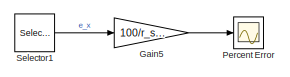
[diagram: root canvas - part 1/3, top right region]
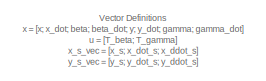
[diagram: root canvas - part 2/3, middle left region]
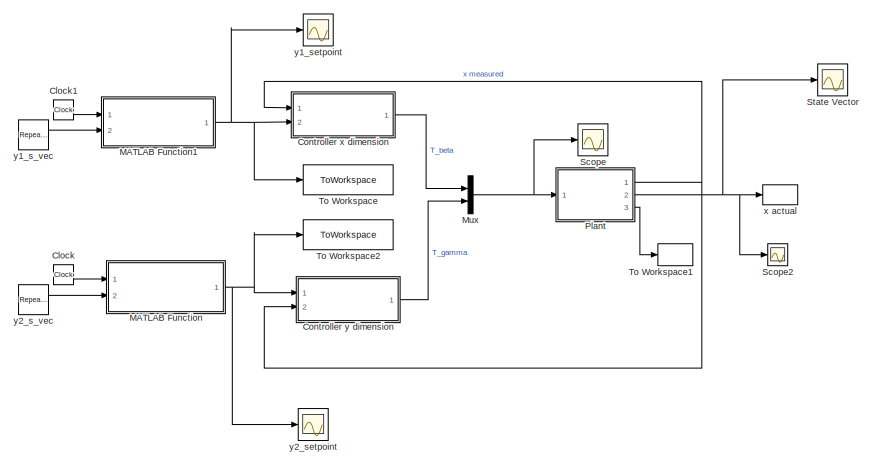
[diagram: root canvas - part 3/3, bottom left region]
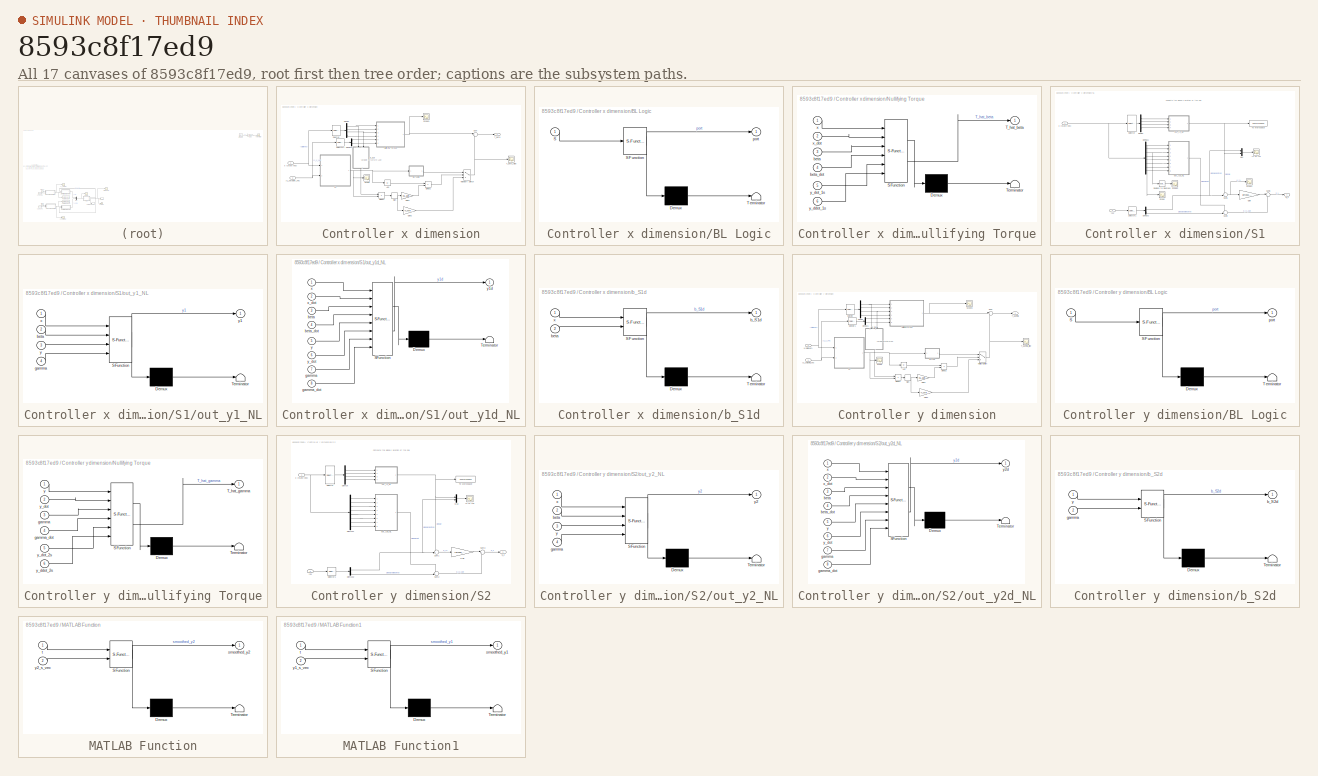
[diagram: thumbnail index - all 17 canvases of the model, root first then tree order]
MODEL slx_8593c8f17ed9
KIND model
CONFIG AbsTol = auto
CONFIG EnableMultiTasking = off
CONFIG FixedStep = auto
CONFIG MaxStep = auto
CONFIG MinStep = auto
CONFIG RelTol = 1e-9
CONFIG SampleTimeConstraint = Unconstrained
CONFIG SolverName = VariableStepAuto
CONFIG StartTime = 0.0
CONFIG StopTime = t_sim
BLOCK [Clock] Clock
BLOCK [Clock] Clock1
BLOCK [SubSystem] Controller x dimension
  Ports = [2, 1]
  RequestExecContextInheritance = off
BLOCK [Abs] Controller x dimension/Abs
  SaturateOnIntegerOverflow = off
BLOCK [SubSystem] Controller x dimension/BL Logic
  ErrorFcn = Stateflow.Translate.translate
  PermitHierarchicalResolution = ExplicitOnly
  Ports = [1, 1]
  RequestExecContextInheritance = off
  SFBlockType = MATLAB Function
  TreatAsAtomicUnit = on
BLOCK [Demux] Controller x dimension/BL Logic/ Demux 
  Outputs = 1
  Ports = [1, 1]
BLOCK [S-Function] Controller x dimension/BL Logic/ SFunction 
  EnableBusSupport = on
  FunctionName = sf_sfun
  Parameters = S_BL_value
  PortCounts = [1 2]
  Ports = [1, 2]
  SFcnIsStateOwnerBlock = off
  SFunctionDeploymentMode = off
  Tag = Stateflow S-Function 12
BLOCK [Terminator] Controller x dimension/BL Logic/ Terminator 
BLOCK [Inport] Controller x dimension/BL Logic/S
BLOCK [Outport] Controller x dimension/BL Logic/port
BLOCK [Demux] Controller x dimension/Demux
  Ports = [1, 4]
BLOCK [Demux] Controller x dimension/Demux1
  Outputs = 2
  Ports = [1, 2]
BLOCK [Product] Controller x dimension/Divide1
  Inputs = **
  Ports = [2, 1]
BLOCK [Product] Controller x dimension/Divide2
  Inputs = **
  Ports = [2, 1]
BLOCK [Gain] Controller x dimension/Gain1
  Gain = -BL_gain
BLOCK [Gain] Controller x dimension/Gain2
  Gain = -K_switch
BLOCK [MultiPortSwitch] Controller x dimension/Multiport Switch
  InputSameDT = off
  Inputs = 2
  Ports = [3, 1]
  SaturateOnIntegerOverflow = off
BLOCK [SubSystem] Controller x dimension/Nullifying Torque
  ErrorFcn = Stateflow.Translate.translate
  PermitHierarchicalResolution = ExplicitOnly
  Ports = [6, 1]
  RequestExecContextInheritance = off
  SFBlockType = MATLAB Function
  TreatAsAtomicUnit = on
BLOCK [Demux] Controller x dimension/Nullifying Torque/ Demux 
  Outputs = 1
  Ports = [1, 1]
BLOCK [S-Function] Controller x dimension/Nullifying Torque/ SFunction 
  EnableBusSupport = on
  FunctionName = sf_sfun
  PortCounts = [6 2]
  Ports = [6, 2]
  SFcnIsStateOwnerBlock = off
  SFunctionDeploymentMode = off
  Tag = Stateflow S-Function 9
BLOCK [Terminator] Controller x dimension/Nullifying Torque/ Terminator 
BLOCK [Outport] Controller x dimension/Nullifying Torque/T_hat_beta
BLOCK [Inport] Controller x dimension/Nullifying Torque/beta
  Port = 3
BLOCK [Inport] Controller x dimension/Nullifying Torque/beta_dot
  Port = 4
BLOCK [Inport] Controller x dimension/Nullifying Torque/x
BLOCK [Inport] Controller x dimension/Nullifying Torque/x_dot
  Port = 2
BLOCK [Inport] Controller x dimension/Nullifying Torque/y_ddot_1s
  Port = 6
BLOCK [Inport] Controller x dimension/Nullifying Torque/y_dot_1s
  Port = 5
BLOCK [SubSystem] Controller x dimension/S1
  Ports = [2, 1]
  RequestExecContextInheritance = off
BLOCK [Demux] Controller x dimension/S1/Demux
  Ports = [1, 4]
BLOCK [Demux] Controller x dimension/S1/Demux1
  Outputs = 8
  Ports = [1, 8]
BLOCK [Demux] Controller x dimension/S1/Demux2
  Outputs = 2
  Ports = [1, 2]
BLOCK [Gain] Controller x dimension/S1/Gain
  Gain = lambda_1_num
BLOCK [Mux] Controller x dimension/S1/Mux
  DisplayOption = bar
  Inputs = 2
  Ports = [2, 1]
BLOCK [Reference] Controller x dimension/S1/Radians to Degrees  REF=simulink_extras/Transformations/Radians
to Degrees
  Ports = [1, 1]
  SourceBlock = simulink_extras/Transformations/Radians\nto Degrees
  SourceProductBaseCode = SL
  SourceType = RadiansToDegrees
BLOCK [Outport] Controller x dimension/S1/S_1
BLOCK [Scope] Controller x dimension/S1/Scope
  Floating = off
  NumInputPorts = 1
  Ports = [1]
  ScopeSpecificationString = Simulink.scopes.TimeScopeBlockCfg('CurrentConfiguration', extmgr.ConfigurationSet(extmgr.Configuration('Core','General UI',true),extmgr.Configuration('Core','Source UI',true),extmgr.Configuration('Sources','WiredSimulink',true,'DataLoggingVariableName','ScopeData1'),extmgr.Configuration('Visuals','Time Domain',true,'SerializedDisplays',{struct('MinYLimReal','-0.13096','MaxYLimReal','0.1311','YLabe...<+1418ch>
BLOCK [Scope] Controller x dimension/S1/Scope1
  Floating = off
  NumInputPorts = 1
  Ports = [1]
  ScopeSpecificationString = Simulink.scopes.TimeScopeBlockCfg('CurrentConfiguration', extmgr.ConfigurationSet(extmgr.Configuration('Core','General UI',true),extmgr.Configuration('Core','Source UI',true),extmgr.Configuration('Sources','WiredSimulink',true,'DataLoggingVariableName','ScopeData4'),extmgr.Configuration('Visuals','Time Domain',true,'SerializedDisplays',{struct('MinYLimReal','-4.34062','MaxYLimReal','1.0135','YLabe...<+1435ch>
BLOCK [Scope] Controller x dimension/S1/Scope2
  Floating = off
  NumInputPorts = 1
  Ports = [1]
  ScopeSpecificationString = Simulink.scopes.TimeScopeBlockCfg('CurrentConfiguration', extmgr.ConfigurationSet(extmgr.Configuration('Core','General UI',true),extmgr.Configuration('Core','Source UI',true),extmgr.Configuration('Sources','WiredSimulink',true,'DataLoggingVariableName','ScopeData3'),extmgr.Configuration('Visuals','Time Domain',true,'SerializedDisplays',{struct('MinYLimReal','-82.40994','MaxYLimReal','169.11504','Y...<+1460ch>
BLOCK [Selector] Controller x dimension/S1/Selector
  IndexOptions = Index vector (dialog)
  Indices = [1 3 5 7]
  InputPortWidth = 8
  OutputSizes = 1
  Ports = [1, 1]
BLOCK [Selector] Controller x dimension/S1/Selector1
  IndexOptions = Index vector (dialog)
  Indices = [1 2]
  InputPortWidth = 3
  OutputSizes = 1
  Ports = [1, 1]
BLOCK [Sum] Controller x dimension/S1/Sum1
  Inputs = -+|
  Ports = [2, 1]
BLOCK [Sum] Controller x dimension/S1/Sum2
  Inputs = -+|
  Ports = [2, 1]
BLOCK [Sum] Controller x dimension/S1/Sum3
  Inputs = |++
  Ports = [2, 1]
BLOCK [ToWorkspace] Controller x dimension/S1/To Workspace
  FixptAsFi = on
  MaxDataPoints = inf
  Ports = [1]
  SampleTime = -1
  VariableName = y1
BLOCK [SubSystem] Controller x dimension/S1/out_y1_NL
  ErrorFcn = Stateflow.Translate.translate
  PermitHierarchicalResolution = ExplicitOnly
  Ports = [4, 1]
  RequestExecContextInheritance = off
  SFBlockType = MATLAB Function
  TreatAsAtomicUnit = on
BLOCK [Demux] Controller x dimension/S1/out_y1_NL/ Demux 
  Outputs = 1
  Ports = [1, 1]
BLOCK [S-Function] Controller x dimension/S1/out_y1_NL/ SFunction 
  EnableBusSupport = on
  FunctionName = sf_sfun
  PortCounts = [4 2]
  Ports = [4, 2]
  SFcnIsStateOwnerBlock = off
  SFunctionDeploymentMode = off
  Tag = Stateflow S-Function 5
BLOCK [Terminator] Controller x dimension/S1/out_y1_NL/ Terminator 
BLOCK [Inport] Controller x dimension/S1/out_y1_NL/beta
  Port = 2
BLOCK [Inport] Controller x dimension/S1/out_y1_NL/gamma
  Port = 4
BLOCK [Inport] Controller x dimension/S1/out_y1_NL/x
BLOCK [Inport] Controller x dimension/S1/out_y1_NL/y
  Port = 3
BLOCK [Outport] Controller x dimension/S1/out_y1_NL/y1
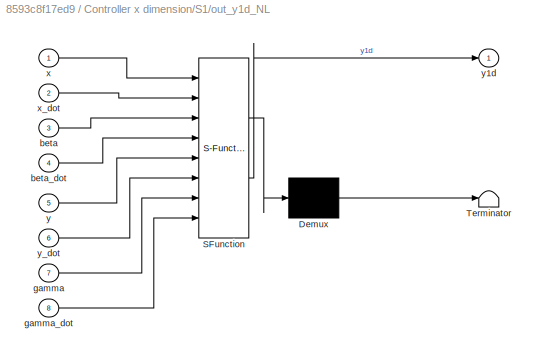
BLOCK [SubSystem] Controller x dimension/S1/out_y1d_NL
  ErrorFcn = Stateflow.Translate.translate
  PermitHierarchicalResolution = ExplicitOnly
  Ports = [8, 1]
  RequestExecContextInheritance = off
  SFBlockType = MATLAB Function
  TreatAsAtomicUnit = on
BLOCK [Demux] Controller x dimension/S1/out_y1d_NL/ Demux 
  Outputs = 1
  Ports = [1, 1]
BLOCK [S-Function] Controller x dimension/S1/out_y1d_NL/ SFunction 
  EnableBusSupport = on
  FunctionName = sf_sfun
  PortCounts = [8 2]
  Ports = [8, 2]
  SFcnIsStateOwnerBlock = off
  SFunctionDeploymentMode = off
  Tag = Stateflow S-Function 11
BLOCK [Terminator] Controller x dimension/S1/out_y1d_NL/ Terminator 
BLOCK [Inport] Controller x dimension/S1/out_y1d_NL/beta
  Port = 3
BLOCK [Inport] Controller x dimension/S1/out_y1d_NL/beta_dot
  Port = 4
BLOCK [Inport] Controller x dimension/S1/out_y1d_NL/gamma
  Port = 7
BLOCK [Inport] Controller x dimension/S1/out_y1d_NL/gamma_dot
  Port = 8
BLOCK [Inport] Controller x dimension/S1/out_y1d_NL/x
BLOCK [Inport] Controller x dimension/S1/out_y1d_NL/x_dot
  Port = 2
BLOCK [Inport] Controller x dimension/S1/out_y1d_NL/y
  Port = 5
BLOCK [Outport] Controller x dimension/S1/out_y1d_NL/y1d
BLOCK [Inport] Controller x dimension/S1/out_y1d_NL/y_dot
  Port = 6
BLOCK [Inport] Controller x dimension/S1/x (state vec)
BLOCK [Scope] Controller x dimension/S1/y1 vs y1s
  Floating = off
  NumInputPorts = 1
  Ports = [1]
  ScopeSpecificationString = Simulink.scopes.TimeScopeBlockCfg('CurrentConfiguration', extmgr.ConfigurationSet(extmgr.Configuration('Core','General UI',true),extmgr.Configuration('Core','Source UI',true),extmgr.Configuration('Sources','WiredSimulink',true,'DataLoggingVariableName','ScopeData5'),extmgr.Configuration('Visuals','Time Domain',true,'SerializedDisplays',{struct('MinYLimReal','-0.08861','MaxYLimReal','0.09733','YLab...<+1459ch>
BLOCK [Inport] Controller x dimension/S1/y1s
  Port = 2
BLOCK [Scope] Controller x dimension/Scope
  Floating = off
  NumInputPorts = 1
  Ports = [1]
  ScopeSpecificationString = Simulink.scopes.TimeScopeBlockCfg('CurrentConfiguration', extmgr.ConfigurationSet(extmgr.Configuration('Core','General UI',true),extmgr.Configuration('Core','Source UI',true),extmgr.Configuration('Sources','WiredSimulink',true,'DataLoggingVariableName','ScopeData2'),extmgr.Configuration('Visuals','Time Domain',true,'SerializedDisplays',{struct('MinYLimReal','-0.00633','MaxYLimReal','0.05626','YLab...<+1435ch>
BLOCK [Scope] Controller x dimension/Scope3
  Floating = off
  NumInputPorts = 1
  Ports = [1]
  ScopeSpecificationString = Simulink.scopes.TimeScopeBlockCfg('CurrentConfiguration', extmgr.ConfigurationSet(extmgr.Configuration('Core','General UI',true),extmgr.Configuration('Core','Source UI',true),extmgr.Configuration('Sources','WiredSimulink',true,'DataLoggingVariableName','ScopeData1'),extmgr.Configuration('Visuals','Time Domain',true,'SerializedDisplays',{struct('MinYLimReal','-5489542715363353.00000','MaxYLimReal',...<+1562ch>
BLOCK [Selector] Controller x dimension/Selector
  IndexOptions = Index vector (dialog)
  Indices = [1:4]
  InputPortWidth = 8
  OutputSizes = 1
  Ports = [1, 1]
BLOCK [Selector] Controller x dimension/Selector1
  IndexOptions = Index vector (dialog)
  Indices = [2 3]
  InputPortWidth = 3
  OutputSizes = 1
  Ports = [1, 1]
BLOCK [Signum] Controller x dimension/Sign
BLOCK [Sum] Controller x dimension/Sum
  Inputs = |++
  Ports = [2, 1]
BLOCK [Outport] Controller x dimension/T_beta
BLOCK [Scope] Controller x dimension/T_beta_tilde
  Floating = off
  NumInputPorts = 1
  Ports = [1]
  ScopeSpecificationString = Simulink.scopes.TimeScopeBlockCfg('CurrentConfiguration', extmgr.ConfigurationSet(extmgr.Configuration('Core','General UI',true),extmgr.Configuration('Core','Source UI',true),extmgr.Configuration('Sources','WiredSimulink',true,'DataLoggingVariableName','ScopeData1'),extmgr.Configuration('Visuals','Time Domain',true,'SerializedDisplays',{struct('MinYLimReal','-0.00434','MaxYLimReal','0.00882','YLab...<+1449ch>
BLOCK [SubSystem] Controller x dimension/b_S1d
  ErrorFcn = Stateflow.Translate.translate
  NameLocation = right
  PermitHierarchicalResolution = ExplicitOnly
  Ports = [2, 1]
  RequestExecContextInheritance = off
  SFBlockType = MATLAB Function
  TreatAsAtomicUnit = on
BLOCK [Demux] Controller x dimension/b_S1d/ Demux 
  Outputs = 1
  Ports = [1, 1]
BLOCK [S-Function] Controller x dimension/b_S1d/ SFunction 
  EnableBusSupport = on
  FunctionName = sf_sfun
  PortCounts = [2 2]
  Ports = [2, 2]
  SFcnIsStateOwnerBlock = off
  SFunctionDeploymentMode = off
  Tag = Stateflow S-Function 6
BLOCK [Terminator] Controller x dimension/b_S1d/ Terminator 
BLOCK [Outport] Controller x dimension/b_S1d/b_S1d
BLOCK [Inport] Controller x dimension/b_S1d/beta
  Port = 2
BLOCK [Inport] Controller x dimension/b_S1d/x
BLOCK [Inport] Controller x dimension/x (state vec)
BLOCK [Inport] Controller x dimension/y1_setpoint_vec
  Port = 2
BLOCK [SubSystem] Controller y dimension
  NameLocation = top
  Ports = [2, 1]
  RequestExecContextInheritance = off
BLOCK [Abs] Controller y dimension/Abs
  SaturateOnIntegerOverflow = off
BLOCK [SubSystem] Controller y dimension/BL Logic
  ErrorFcn = Stateflow.Translate.translate
  PermitHierarchicalResolution = ExplicitOnly
  Ports = [1, 1]
  RequestExecContextInheritance = off
  SFBlockType = MATLAB Function
  TreatAsAtomicUnit = on
BLOCK [Demux] Controller y dimension/BL Logic/ Demux 
  Outputs = 1
  Ports = [1, 1]
BLOCK [S-Function] Controller y dimension/BL Logic/ SFunction 
  EnableBusSupport = on
  FunctionName = sf_sfun
  Parameters = S_BL_value
  PortCounts = [1 2]
  Ports = [1, 2]
  SFcnIsStateOwnerBlock = off
  SFunctionDeploymentMode = off
  Tag = Stateflow S-Function 7
BLOCK [Terminator] Controller y dimension/BL Logic/ Terminator 
BLOCK [Inport] Controller y dimension/BL Logic/S
BLOCK [Outport] Controller y dimension/BL Logic/port
BLOCK [Demux] Controller y dimension/Demux
  Ports = [1, 4]
BLOCK [Demux] Controller y dimension/Demux1
  Outputs = 2
  Ports = [1, 2]
BLOCK [Product] Controller y dimension/Divide1
  Inputs = **
  Ports = [2, 1]
BLOCK [Product] Controller y dimension/Divide2
  Inputs = **
  Ports = [2, 1]
BLOCK [Gain] Controller y dimension/Gain1
  Gain = -BL_gain
BLOCK [Gain] Controller y dimension/Gain2
  Gain = -K_switch
BLOCK [MultiPortSwitch] Controller y dimension/Multiport Switch
  InputSameDT = off
  Inputs = 2
  Ports = [3, 1]
  SaturateOnIntegerOverflow = off
BLOCK [SubSystem] Controller y dimension/Nullifying Torque
  ErrorFcn = Stateflow.Translate.translate
  PermitHierarchicalResolution = ExplicitOnly
  Ports = [6, 1]
  RequestExecContextInheritance = off
  SFBlockType = MATLAB Function
  TreatAsAtomicUnit = on
BLOCK [Demux] Controller y dimension/Nullifying Torque/ Demux 
  Outputs = 1
  Ports = [1, 1]
BLOCK [S-Function] Controller y dimension/Nullifying Torque/ SFunction 
  EnableBusSupport = on
  FunctionName = sf_sfun
  PortCounts = [6 2]
  Ports = [6, 2]
  SFcnIsStateOwnerBlock = off
  SFunctionDeploymentMode = off
  Tag = Stateflow S-Function 10
BLOCK [Terminator] Controller y dimension/Nullifying Torque/ Terminator 
BLOCK [Outport] Controller y dimension/Nullifying Torque/T_hat_gamma
BLOCK [Inport] Controller y dimension/Nullifying Torque/gamma
  Port = 3
BLOCK [Inport] Controller y dimension/Nullifying Torque/gamma_dot
  Port = 4
BLOCK [Inport] Controller y dimension/Nullifying Torque/y
BLOCK [Inport] Controller y dimension/Nullifying Torque/y_ddot_2s
  Port = 6
BLOCK [Inport] Controller y dimension/Nullifying Torque/y_dot
  Port = 2
BLOCK [Inport] Controller y dimension/Nullifying Torque/y_dot_2s
  Port = 5
BLOCK [SubSystem] Controller y dimension/S2
  Ports = [2, 1]
  RequestExecContextInheritance = off
BLOCK [Demux] Controller y dimension/S2/Demux
  Ports = [1, 4]
BLOCK [Demux] Controller y dimension/S2/Demux1
  Outputs = 8
  Ports = [1, 8]
BLOCK [Demux] Controller y dimension/S2/Demux2
  Outputs = 2
  Ports = [1, 2]
BLOCK [Gain] Controller y dimension/S2/Gain
  Gain = lambda_2_num
BLOCK [Mux] Controller y dimension/S2/Mux
  DisplayOption = bar
  Inputs = 2
  Ports = [2, 1]
BLOCK [Outport] Controller y dimension/S2/S_2
BLOCK [Selector] Controller y dimension/S2/Selector
  IndexOptions = Index vector (dialog)
  Indices = [1 3 5 7]
  InputPortWidth = 8
  OutputSizes = 1
  Ports = [1, 1]
BLOCK [Selector] Controller y dimension/S2/Selector1
  IndexOptions = Index vector (dialog)
  Indices = [1 2]
  InputPortWidth = 3
  OutputSizes = 1
  Ports = [1, 1]
BLOCK [Sum] Controller y dimension/S2/Sum1
  Inputs = -+|
  Ports = [2, 1]
BLOCK [Sum] Controller y dimension/S2/Sum2
  Inputs = -+|
  Ports = [2, 1]
BLOCK [Sum] Controller y dimension/S2/Sum3
  Inputs = |++
  Ports = [2, 1]
BLOCK [ToWorkspace] Controller y dimension/S2/To Workspace
  FixptAsFi = on
  MaxDataPoints = inf
  Ports = [1]
  SampleTime = -1
  VariableName = y2
BLOCK [SubSystem] Controller y dimension/S2/out_y2_NL
  ErrorFcn = Stateflow.Translate.translate
  PermitHierarchicalResolution = ExplicitOnly
  Ports = [4, 1]
  RequestExecContextInheritance = off
  SFBlockType = MATLAB Function
  TreatAsAtomicUnit = on
BLOCK [Demux] Controller y dimension/S2/out_y2_NL/ Demux 
  Outputs = 1
  Ports = [1, 1]
BLOCK [S-Function] Controller y dimension/S2/out_y2_NL/ SFunction 
  EnableBusSupport = on
  FunctionName = sf_sfun
  PortCounts = [4 2]
  Ports = [4, 2]
  SFcnIsStateOwnerBlock = off
  SFunctionDeploymentMode = off
  Tag = Stateflow S-Function 4
BLOCK [Terminator] Controller y dimension/S2/out_y2_NL/ Terminator 
BLOCK [Inport] Controller y dimension/S2/out_y2_NL/beta
  Port = 2
BLOCK [Inport] Controller y dimension/S2/out_y2_NL/gamma
  Port = 4
BLOCK [Inport] Controller y dimension/S2/out_y2_NL/x
BLOCK [Inport] Controller y dimension/S2/out_y2_NL/y
  Port = 3
BLOCK [Outport] Controller y dimension/S2/out_y2_NL/y2
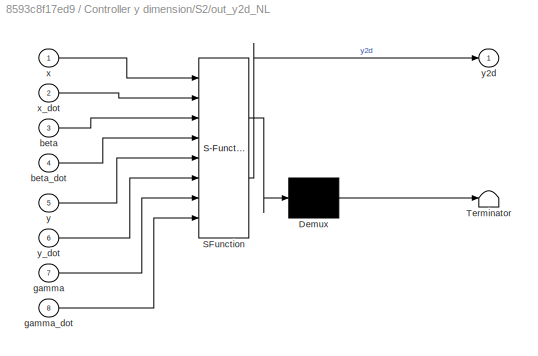
BLOCK [SubSystem] Controller y dimension/S2/out_y2d_NL
  ErrorFcn = Stateflow.Translate.translate
  PermitHierarchicalResolution = ExplicitOnly
  Ports = [8, 1]
  RequestExecContextInheritance = off
  SFBlockType = MATLAB Function
  TreatAsAtomicUnit = on
BLOCK [Demux] Controller y dimension/S2/out_y2d_NL/ Demux 
  Outputs = 1
  Ports = [1, 1]
BLOCK [S-Function] Controller y dimension/S2/out_y2d_NL/ SFunction 
  EnableBusSupport = on
  FunctionName = sf_sfun
  PortCounts = [8 2]
  Ports = [8, 2]
  SFcnIsStateOwnerBlock = off
  SFunctionDeploymentMode = off
  Tag = Stateflow S-Function 8
BLOCK [Terminator] Controller y dimension/S2/out_y2d_NL/ Terminator 
BLOCK [Inport] Controller y dimension/S2/out_y2d_NL/beta
  Port = 3
BLOCK [Inport] Controller y dimension/S2/out_y2d_NL/beta_dot
  Port = 4
BLOCK [Inport] Controller y dimension/S2/out_y2d_NL/gamma
  Port = 7
BLOCK [Inport] Controller y dimension/S2/out_y2d_NL/gamma_dot
  Port = 8
BLOCK [Inport] Controller y dimension/S2/out_y2d_NL/x
BLOCK [Inport] Controller y dimension/S2/out_y2d_NL/x_dot
  Port = 2
BLOCK [Inport] Controller y dimension/S2/out_y2d_NL/y
  Port = 5
BLOCK [Outport] Controller y dimension/S2/out_y2d_NL/y2d
BLOCK [Inport] Controller y dimension/S2/out_y2d_NL/y_dot
  Port = 6
BLOCK [Inport] Controller y dimension/S2/x (state vec)
BLOCK [Scope] Controller y dimension/S2/y2 vs y2s
  Floating = off
  NumInputPorts = 1
  Ports = [1]
  ScopeSpecificationString = Simulink.scopes.TimeScopeBlockCfg('CurrentConfiguration', extmgr.ConfigurationSet(extmgr.Configuration('Core','General UI',true),extmgr.Configuration('Core','Source UI',true),extmgr.Configuration('Sources','WiredSimulink',true,'DataLoggingVariableName','ScopeData6'),extmgr.Configuration('Visuals','Time Domain',true,'SerializedDisplays',{struct('MinYLimReal','-15.40053','MaxYLimReal','2.1788','YLab...<+1462ch>
BLOCK [Inport] Controller y dimension/S2/y2s
  Port = 2
BLOCK [Scope] Controller y dimension/Scope
  Floating = off
  NumInputPorts = 1
  Ports = [1]
  ScopeSpecificationString = Simulink.scopes.TimeScopeBlockCfg('CurrentConfiguration', extmgr.ConfigurationSet(extmgr.Configuration('Core','General UI',true),extmgr.Configuration('Core','Source UI',true),extmgr.Configuration('Sources','WiredSimulink',true,'DataLoggingVariableName','ScopeData1'),extmgr.Configuration('Visuals','Time Domain',true,'SerializedDisplays',{struct('MinYLimReal','-0.01856','MaxYLimReal','0.00034','YLab...<+1434ch>
BLOCK [Scope] Controller y dimension/Scope3
  Floating = off
  NumInputPorts = 1
  Ports = [1]
  ScopeSpecificationString = Simulink.scopes.TimeScopeBlockCfg('CurrentConfiguration', extmgr.ConfigurationSet(extmgr.Configuration('Core','General UI',true),extmgr.Configuration('Core','Source UI',true),extmgr.Configuration('Sources','WiredSimulink',true,'DataLoggingVariableName','ScopeData7'),extmgr.Configuration('Visuals','Time Domain',true,'SerializedDisplays',{struct('MinYLimReal','-62047300693040.33594','MaxYLimReal','9...<+1550ch>
BLOCK [Selector] Controller y dimension/Selector
  IndexOptions = Index vector (dialog)
  Indices = [5:8]
  InputPortWidth = 8
  OutputSizes = 1
  Ports = [1, 1]
BLOCK [Selector] Controller y dimension/Selector1
  IndexOptions = Index vector (dialog)
  Indices = [2 3]
  InputPortWidth = 3
  OutputSizes = 1
  Ports = [1, 1]
BLOCK [Signum] Controller y dimension/Sign
BLOCK [Sum] Controller y dimension/Sum
  Inputs = |++
  Ports = [2, 1]
BLOCK [Outport] Controller y dimension/T_gamma
BLOCK [Scope] Controller y dimension/T_gamma_tilde
  Floating = off
  NumInputPorts = 1
  Ports = [1]
  ScopeSpecificationString = Simulink.scopes.TimeScopeBlockCfg('CurrentConfiguration', extmgr.ConfigurationSet(extmgr.Configuration('Core','General UI',true),extmgr.Configuration('Core','Source UI',true),extmgr.Configuration('Sources','WiredSimulink',true,'DataLoggingVariableName','ScopeData2'),extmgr.Configuration('Visuals','Time Domain',true,'SerializedDisplays',{struct('MinYLimReal','-0.00937','MaxYLimReal','0.00937','YLab...<+1449ch>
BLOCK [SubSystem] Controller y dimension/b_S2d
  ErrorFcn = Stateflow.Translate.translate
  NameLocation = right
  PermitHierarchicalResolution = ExplicitOnly
  Ports = [2, 1]
  RequestExecContextInheritance = off
  SFBlockType = MATLAB Function
  TreatAsAtomicUnit = on
BLOCK [Demux] Controller y dimension/b_S2d/ Demux 
  Outputs = 1
  Ports = [1, 1]
BLOCK [S-Function] Controller y dimension/b_S2d/ SFunction 
  EnableBusSupport = on
  FunctionName = sf_sfun
  PortCounts = [2 2]
  Ports = [2, 2]
  SFcnIsStateOwnerBlock = off
  SFunctionDeploymentMode = off
  Tag = Stateflow S-Function 13
BLOCK [Terminator] Controller y dimension/b_S2d/ Terminator 
BLOCK [Outport] Controller y dimension/b_S2d/b_S2d
BLOCK [Inport] Controller y dimension/b_S2d/gamma
  Port = 2
BLOCK [Inport] Controller y dimension/b_S2d/y
BLOCK [Inport] Controller y dimension/x (state vec)
  Port = 2
BLOCK [Inport] Controller y dimension/y2_setpoint_vec
BLOCK [Gain] Gain5
  Commented = on
  Gain = 100/r_sim
BLOCK [SubSystem] MATLAB Function
  ErrorFcn = Stateflow.Translate.translate
  PermitHierarchicalResolution = ExplicitOnly
  Ports = [2, 1]
  RequestExecContextInheritance = off
  SFBlockType = MATLAB Function
  TreatAsAtomicUnit = on
BLOCK [Demux] MATLAB Function/ Demux 
  Outputs = 1
  Ports = [1, 1]
BLOCK [S-Function] MATLAB Function/ SFunction 
  EnableBusSupport = on
  FunctionName = sf_sfun
  Parameters = Tau,y2_0
  PortCounts = [2 2]
  Ports = [2, 2]
  SFcnIsStateOwnerBlock = off
  SFunctionDeploymentMode = off
  Tag = Stateflow S-Function 2
BLOCK [Terminator] MATLAB Function/ Terminator 
BLOCK [Outport] MATLAB Function/smoothed_y2
BLOCK [Inport] MATLAB Function/t
BLOCK [Inport] MATLAB Function/y2_s_vec
  Port = 2
BLOCK [SubSystem] MATLAB Function1
  ErrorFcn = Stateflow.Translate.translate
  PermitHierarchicalResolution = ExplicitOnly
  Ports = [2, 1]
  RequestExecContextInheritance = off
  SFBlockType = MATLAB Function
  TreatAsAtomicUnit = on
BLOCK [Demux] MATLAB Function1/ Demux 
  Outputs = 1
  Ports = [1, 1]
BLOCK [S-Function] MATLAB Function1/ SFunction 
  EnableBusSupport = on
  FunctionName = sf_sfun
  Parameters = Tau,y1_0
  PortCounts = [2 2]
  Ports = [2, 2]
  SFcnIsStateOwnerBlock = off
  SFunctionDeploymentMode = off
  Tag = Stateflow S-Function 1
BLOCK [Terminator] MATLAB Function1/ Terminator 
BLOCK [Outport] MATLAB Function1/smoothed_y1
BLOCK [Inport] MATLAB Function1/t
BLOCK [Inport] MATLAB Function1/y1_s_vec
  Port = 2
BLOCK [Mux] Mux
  DisplayOption = bar
  Inputs = 2
  Ports = [2, 1]
BLOCK [Scope] Percent Error
  Commented = on
  Floating = off
  NumInputPorts = 1
  Ports = [1]
  ScopeSpecificationString = Simulink.scopes.TimeScopeBlockCfg('CurrentConfiguration', extmgr.ConfigurationSet(extmgr.Configuration('Core','General UI',true),extmgr.Configuration('Core','Source UI',true),extmgr.Configuration('Sources','WiredSimulink',true,'DataLoggingVariableName','ScopeData2'),extmgr.Configuration('Visuals','Time Domain',true,'SerializedDisplays',{struct('MinYLimReal','-1.29449','MaxYLimReal','1.86814','YLab...<+1556ch>
BLOCK [ModelReference] Plant
  ModelNameDialog = Plant
  ModelReferenceVersion = 1.107
  Ports = [1, 3]
BLOCK [Scope] Scope
  Floating = off
  NumInputPorts = 1
  Ports = [1]
  ScopeSpecificationString = Simulink.scopes.TimeScopeBlockCfg('CurrentConfiguration', extmgr.ConfigurationSet(extmgr.Configuration('Core','General UI',true),extmgr.Configuration('Core','Source UI',true),extmgr.Configuration('Sources','WiredSimulink',true,'DataLoggingVariableName','ScopeData4'),extmgr.Configuration('Visuals','Time Domain',true,'SerializedDisplays',{struct('MinYLimReal','-0.08253','MaxYLimReal','0.08122','YLab...<+1715ch>
BLOCK [Scope] Scope2
  Floating = off
  NumInputPorts = 1
  Ports = [1]
  ScopeSpecificationString = Simulink.scopes.TimeScopeBlockCfg('CurrentConfiguration', extmgr.ConfigurationSet(extmgr.Configuration('Core','General UI',true),extmgr.Configuration('Core','Source UI',true),extmgr.Configuration('Sources','WiredSimulink',true,'DataLoggingVariableName','ScopeData1'),extmgr.Configuration('Visuals','Time Domain',true,'SerializedDisplays',{struct('MinYLimReal','-0.50678','MaxYLimReal','0.55382','YLab...<+1606ch>
BLOCK [Selector] Selector1
  Commented = on
  IndexOptions = Index vector (dialog)
  Indices = [1]
  InputPortWidth = 5
  OutputSizes = 1
  Ports = [1, 1]
BLOCK [Scope] State Vector
  Floating = off
  NumInputPorts = 1
  Ports = [1]
  ScopeSpecificationString = Simulink.scopes.TimeScopeBlockCfg('CurrentConfiguration', extmgr.ConfigurationSet(extmgr.Configuration('Core','General UI',true),extmgr.Configuration('Core','Source UI',true),extmgr.Configuration('Sources','WiredSimulink',true,'DataLoggingVariableName','ScopeData3'),extmgr.Configuration('Visuals','Time Domain',true,'SerializedDisplays',{struct('MinYLimReal','-1.60575','MaxYLimReal','1.82235','YLab...<+1596ch>
BLOCK [ToWorkspace] To Workspace
  FixptAsFi = on
  MaxDataPoints = inf
  Ports = [1]
  SampleTime = -1
  VariableName = y1_s_vec
BLOCK [ToWorkspace] To Workspace1
  FixptAsFi = on
  MaxDataPoints = inf
  Ports = [1]
  SampleTime = -1
  VariableName = u
BLOCK [ToWorkspace] To Workspace2
  FixptAsFi = on
  MaxDataPoints = inf
  Ports = [1]
  SampleTime = -1
  VariableName = y2_s_vec
BLOCK [ToWorkspace] x actual
  FixptAsFi = on
  MaxDataPoints = inf
  Ports = [1]
  SampleTime = -1
  VariableName = x
BLOCK [Reference] y1_s_vec  REF=simulink/Sources/Repeating
Sequence
  Ports = [0, 1]
  SourceBlock = simulink/Sources/Repeating\nSequence
  SourceProductBaseCode = SL
  SourceType = Repeating table
BLOCK [Scope] y1_setpoint
  Floating = off
  NumInputPorts = 1
  Ports = [1]
  ScopeSpecificationString = Simulink.scopes.TimeScopeBlockCfg('CurrentConfiguration', extmgr.ConfigurationSet(extmgr.Configuration('Core','General UI',true),extmgr.Configuration('Core','Source UI',true),extmgr.Configuration('Sources','WiredSimulink',true,'DataLoggingVariableName','ScopeData2'),extmgr.Configuration('Visuals','Time Domain',true),extmgr.Configuration('Tools','Plot Navigation',true),extmgr.Configuration('Tools',...<+40ch>
BLOCK [Reference] y2_s_vec  REF=simulink/Sources/Repeating
Sequence
  Ports = [0, 1]
  SourceBlock = simulink/Sources/Repeating\nSequence
  SourceProductBaseCode = SL
  SourceType = Repeating table
BLOCK [Scope] y2_setpoint
  Floating = off
  NumInputPorts = 1
  Ports = [1]
  ScopeSpecificationString = Simulink.scopes.TimeScopeBlockCfg('CurrentConfiguration', extmgr.ConfigurationSet(extmgr.Configuration('Core','General UI',true),extmgr.Configuration('Core','Source UI',true),extmgr.Configuration('Sources','WiredSimulink',true,'DataLoggingVariableName','ScopeData3'),extmgr.Configuration('Visuals','Time Domain',true),extmgr.Configuration('Tools','Plot Navigation',true),extmgr.Configuration('Tools',...<+40ch>
ANNOTATION (root): Vector Definitions x = [x; x_dot; beta; beta_dot; y; y_dot; gamma; gamma_dot] u = [T_beta; T_gamma] x_s_vec = [x_s; x_dot_s; x_ddot_s] y_s_vec = [y_s; y_dot_s; y_ddot_s]
ANNOTATION Controller x dimension: Variable Structure Law
ANNOTATION Controller x dimension/S1: Compute the global x location of the ball
ANNOTATION Controller y dimension: Variable Structure Law
ANNOTATION Controller y dimension/S2: Compute the global y location of the ball
LINE Clock1:1 -> MATLAB Function1:1
LINE Clock:1 -> MATLAB Function:1
LINE Controller x dimension/Abs:1 -> Controller x dimension/Divide2:1
LINE Controller x dimension/BL Logic:1 -> Controller x dimension/Multiport Switch:1
LINE Controller x dimension/Demux1:1 -> Controller x dimension/Nullifying Torque:5
LINE Controller x dimension/Demux1:2 -> Controller x dimension/Nullifying Torque:6
NET Controller x dimension/Demux:1 -> Controller x dimension/Nullifying Torque:1, Controller x dimension/b_S1d:1
LINE Controller x dimension/Demux:2 -> Controller x dimension/Nullifying Torque:2
NET Controller x dimension/Demux:3 -> Controller x dimension/Nullifying Torque:3, Controller x dimension/b_S1d:2
LINE Controller x dimension/Demux:4 -> Controller x dimension/Nullifying Torque:4
LINE Controller x dimension/Divide1:1 -> Controller x dimension/Sign:1
LINE Controller x dimension/Divide2:1 -> Controller x dimension/Multiport Switch:2
LINE Controller x dimension/Gain1:1 -> Controller x dimension/Divide2:2
LINE Controller x dimension/Gain2:1 -> Controller x dimension/Multiport Switch:3
NET Controller x dimension/Multiport Switch:1 -> Controller x dimension/Sum:2, Controller x dimension/T_beta_tilde:1
NET Controller x dimension/Nullifying Torque:1 -> Controller x dimension/Scope3:1, Controller x dimension/Sum:1
NET Controller x dimension/S1/Demux1:1 -> Controller x dimension/S1/Scope:1, Controller x dimension/S1/out_y1d_NL:1
LINE Controller x dimension/S1/Demux1:2 -> Controller x dimension/S1/out_y1d_NL:2
NET Controller x dimension/S1/Demux1:3 -> Controller x dimension/S1/Radians to Degrees:1, Controller x dimension/S1/out_y1d_NL:3
LINE Controller x dimension/S1/Demux1:4 -> Controller x dimension/S1/out_y1d_NL:4
LINE Controller x dimension/S1/Demux1:5 -> Controller x dimension/S1/out_y1d_NL:5
LINE Controller x dimension/S1/Demux1:6 -> Controller x dimension/S1/out_y1d_NL:6
LINE Controller x dimension/S1/Demux1:7 -> Controller x dimension/S1/out_y1d_NL:7
LINE Controller x dimension/S1/Demux1:8 -> Controller x dimension/S1/out_y1d_NL:8
NET Controller x dimension/S1/Demux2:1 -> Controller x dimension/S1/Mux:1, Controller x dimension/S1/Sum1:2
LINE Controller x dimension/S1/Demux2:2 -> Controller x dimension/S1/Sum2:2
LINE Controller x dimension/S1/Demux:1 -> Controller x dimension/S1/out_y1_NL:1
LINE Controller x dimension/S1/Demux:2 -> Controller x dimension/S1/out_y1_NL:2
LINE Controller x dimension/S1/Demux:3 -> Controller x dimension/S1/out_y1_NL:3
LINE Controller x dimension/S1/Demux:4 -> Controller x dimension/S1/out_y1_NL:4
LINE Controller x dimension/S1/Gain:1 -> Controller x dimension/S1/Sum3:1
LINE Controller x dimension/S1/Mux:1 -> Controller x dimension/S1/y1 vs y1s:1
LINE Controller x dimension/S1/Radians to Degrees:1 -> Controller x dimension/S1/Scope2:1
LINE Controller x dimension/S1/Selector1:1 -> Controller x dimension/S1/Demux2:1
LINE Controller x dimension/S1/Selector:1 -> Controller x dimension/S1/Demux:1
NET Controller x dimension/S1/Sum1:1 -> Controller x dimension/S1/Gain:1, Controller x dimension/S1/Scope1:1
LINE Controller x dimension/S1/Sum2:1 -> Controller x dimension/S1/Sum3:2
LINE Controller x dimension/S1/Sum3:1 -> Controller x dimension/S1/S_1:1
NET Controller x dimension/S1/out_y1_NL:1 -> Controller x dimension/S1/Mux:2, Controller x dimension/S1/Sum1:1, Controller x dimension/S1/To Workspace:1
LINE Controller x dimension/S1/out_y1d_NL:1 -> Controller x dimension/S1/Sum2:1
NET Controller x dimension/S1/x (state vec):1 -> Controller x dimension/S1/Demux1:1, Controller x dimension/S1/Selector:1
LINE Controller x dimension/S1/y1s:1 -> Controller x dimension/S1/Selector1:1
NET Controller x dimension/S1:1 -> Controller x dimension/Abs:1, Controller x dimension/BL Logic:1, Controller x dimension/Divide1:2, Controller x dimension/Scope:1
LINE Controller x dimension/Selector1:1 -> Controller x dimension/Demux1:1
LINE Controller x dimension/Selector:1 -> Controller x dimension/Demux:1
NET Controller x dimension/Sign:1 -> Controller x dimension/Gain1:1, Controller x dimension/Gain2:1
LINE Controller x dimension/Sum:1 -> Controller x dimension/T_beta:1
LINE Controller x dimension/b_S1d:1 -> Controller x dimension/Divide1:1
NET Controller x dimension/x (state vec):1 -> Controller x dimension/S1:1, Controller x dimension/Selector:1
NET Controller x dimension/y1_setpoint_vec:1 -> Controller x dimension/S1:2, Controller x dimension/Selector1:1
LINE Controller x dimension:1 -> Mux:1
LINE Controller y dimension/Abs:1 -> Controller y dimension/Divide2:1
LINE Controller y dimension/BL Logic:1 -> Controller y dimension/Multiport Switch:1
LINE Controller y dimension/Demux1:1 -> Controller y dimension/Nullifying Torque:5
LINE Controller y dimension/Demux1:2 -> Controller y dimension/Nullifying Torque:6
NET Controller y dimension/Demux:1 -> Controller y dimension/Nullifying Torque:1, Controller y dimension/b_S2d:1
LINE Controller y dimension/Demux:2 -> Controller y dimension/Nullifying Torque:2
NET Controller y dimension/Demux:3 -> Controller y dimension/Nullifying Torque:3, Controller y dimension/b_S2d:2
LINE Controller y dimension/Demux:4 -> Controller y dimension/Nullifying Torque:4
LINE Controller y dimension/Divide1:1 -> Controller y dimension/Sign:1
LINE Controller y dimension/Divide2:1 -> Controller y dimension/Multiport Switch:2
LINE Controller y dimension/Gain1:1 -> Controller y dimension/Divide2:2
LINE Controller y dimension/Gain2:1 -> Controller y dimension/Multiport Switch:3
NET Controller y dimension/Multiport Switch:1 -> Controller y dimension/Sum:2, Controller y dimension/T_gamma_tilde:1
NET Controller y dimension/Nullifying Torque:1 -> Controller y dimension/Scope3:1, Controller y dimension/Sum:1
LINE Controller y dimension/S2/Demux1:1 -> Controller y dimension/S2/out_y2d_NL:1
LINE Controller y dimension/S2/Demux1:2 -> Controller y dimension/S2/out_y2d_NL:2
LINE Controller y dimension/S2/Demux1:3 -> Controller y dimension/S2/out_y2d_NL:3
LINE Controller y dimension/S2/Demux1:4 -> Controller y dimension/S2/out_y2d_NL:4
LINE Controller y dimension/S2/Demux1:5 -> Controller y dimension/S2/out_y2d_NL:5
LINE Controller y dimension/S2/Demux1:6 -> Controller y dimension/S2/out_y2d_NL:6
LINE Controller y dimension/S2/Demux1:7 -> Controller y dimension/S2/out_y2d_NL:7
LINE Controller y dimension/S2/Demux1:8 -> Controller y dimension/S2/out_y2d_NL:8
NET Controller y dimension/S2/Demux2:1 -> Controller y dimension/S2/Mux:2, Controller y dimension/S2/Sum1:2
LINE Controller y dimension/S2/Demux2:2 -> Controller y dimension/S2/Sum2:2
LINE Controller y dimension/S2/Demux:1 -> Controller y dimension/S2/out_y2_NL:1
LINE Controller y dimension/S2/Demux:2 -> Controller y dimension/S2/out_y2_NL:2
LINE Controller y dimension/S2/Demux:3 -> Controller y dimension/S2/out_y2_NL:3
LINE Controller y dimension/S2/Demux:4 -> Controller y dimension/S2/out_y2_NL:4
LINE Controller y dimension/S2/Gain:1 -> Controller y dimension/S2/Sum3:1
LINE Controller y dimension/S2/Mux:1 -> Controller y dimension/S2/y2 vs y2s:1
LINE Controller y dimension/S2/Selector1:1 -> Controller y dimension/S2/Demux2:1
LINE Controller y dimension/S2/Selector:1 -> Controller y dimension/S2/Demux:1
LINE Controller y dimension/S2/Sum1:1 -> Controller y dimension/S2/Gain:1
LINE Controller y dimension/S2/Sum2:1 -> Controller y dimension/S2/Sum3:2
LINE Controller y dimension/S2/Sum3:1 -> Controller y dimension/S2/S_2:1
NET Controller y dimension/S2/out_y2_NL:1 -> Controller y dimension/S2/Mux:1, Controller y dimension/S2/Sum1:1, Controller y dimension/S2/To Workspace:1
LINE Controller y dimension/S2/out_y2d_NL:1 -> Controller y dimension/S2/Sum2:1
NET Controller y dimension/S2/x (state vec):1 -> Controller y dimension/S2/Demux1:1, Controller y dimension/S2/Selector:1
LINE Controller y dimension/S2/y2s:1 -> Controller y dimension/S2/Selector1:1
NET Controller y dimension/S2:1 -> Controller y dimension/Abs:1, Controller y dimension/BL Logic:1, Controller y dimension/Divide1:2, Controller y dimension/Scope:1
LINE Controller y dimension/Selector1:1 -> Controller y dimension/Demux1:1
LINE Controller y dimension/Selector:1 -> Controller y dimension/Demux:1
NET Controller y dimension/Sign:1 -> Controller y dimension/Gain1:1, Controller y dimension/Gain2:1
LINE Controller y dimension/Sum:1 -> Controller y dimension/T_gamma:1
LINE Controller y dimension/b_S2d:1 -> Controller y dimension/Divide1:1
NET Controller y dimension/x (state vec):1 -> Controller y dimension/S2:1, Controller y dimension/Selector:1
NET Controller y dimension/y2_setpoint_vec:1 -> Controller y dimension/S2:2, Controller y dimension/Selector1:1
LINE Controller y dimension:1 -> Mux:2
LINE Gain5:1 -> Percent Error:1
NET MATLAB Function1:1 -> Controller x dimension:2, To Workspace:1, y1_setpoint:1
NET MATLAB Function:1 -> Controller y dimension:1, To Workspace2:1, y2_setpoint:1
NET Mux:1 -> Plant:1, Scope:1
NET Plant:1 -> Controller x dimension:1, Controller y dimension:2
NET Plant:2 -> Scope2:1, State Vector:1, x actual:1
LINE Plant:3 -> To Workspace1:1
LINE Selector1:1 -> Gain5:1
LINE y1_s_vec:1 -> MATLAB Function1:2
LINE y2_s_vec:1 -> MATLAB Function:2
note: NET lines group one-source signal fan-out (src -> all destinations, sorted); 1:1 wires keep LINE
CHART Controller x dimension/S1/out_y1d_NL states=1 transitions=1
  STATE_LABEL 'eML_blk_kernel()'
  STATE_LABEL 'SCRIPT:\nfunction y1d = y1d(x,x_dot,beta,beta_dot,y,y_dot,gamma,gamma_dot)\n%#codegen\n\n%    This function was generated by the Symbolic Math Toolbox version 9.0.\n%    16-Jan-2022 15:41:39\n\nt2 = cos(gamma);\nt3 = sin(beta);\nt4 = sin(gamma);\ny1d = cos(beta).*(x_dot+beta_dot.*t2.*1.406e-1+beta_dot.*t4.*y)+t2.*t3.*(gamma_dot.*y-beta_dot.*t2.*x)-t3.*t4.*(gamma_dot.*1.406e-1-y_dot+beta_dot.*t4.*x);\n'
CHART Controller x dimension/BL Logic states=1 transitions=1
  STATE_LABEL 'eML_blk_kernel()'
  STATE_LABEL 'SCRIPT:\nfunction port = fcn(S,S_BL_value)\n\nif abs(S) <= S_BL_value\n\n    port = 1; %If we are in the boundary layer, use the boundary layer proportional law\n\nelse \n    port = 2; %Outside, use the signum law\nend\n\n'
CHART Controller y dimension/b_S2d states=1 transitions=1
  STATE_LABEL 'eML_blk_kernel()'
  STATE_LABEL 'SCRIPT:\nfunction b_S2d = input_gain_S2d(y,gamma)\n%#codegen\n\n%    This function was generated by the Symbolic Math Toolbox version 9.0.\n%    16-Jan-2022 15:41:42\n\nt2 = y.^2;\nt3 = t2.*(6.3e+1./4.0e+1);\nt4 = t3+7.625400325243e-1;\nt5 = 1.0./t4;\nb_S2d = [t5.*cos(gamma).*(4.1e+1./2.0e+2)+t5.*y.*sin(gamma).*7.0];\n'
CHART MATLAB Function1 states=1 transitions=1
  STATE_LABEL 'eML_blk_kernel()'
  STATE_LABEL 'SCRIPT:\nfunction smoothed_y1 = fcn(t, y1_s_vec, Tau, y1_0)\n\nsmoothed_y1 = y1_s_vec*(1-exp(-t/Tau)) + y1_0*exp(-t/Tau);\n'
CHART MATLAB Function states=1 transitions=1
  STATE_LABEL 'eML_blk_kernel()'
  STATE_LABEL 'SCRIPT:\nfunction smoothed_y2 = fcn(t, y2_s_vec, Tau, y2_0)\n\nsmoothed_y2 = y2_s_vec*(1-exp(-t/Tau)) + y2_0*exp(-t/Tau);\n'
CHART Controller y dimension/S2/out_y2_NL states=1 transitions=1
  STATE_LABEL 'eML_blk_kernel()'
  STATE_LABEL 'SCRIPT:\nfunction y2 = y2(x,beta,y,gamma)\n%#codegen\n\n%    This function was generated by the Symbolic Math Toolbox version 9.0.\n%    16-Jan-2022 15:41:40\n\ny2 = sin(gamma).*(-1.406e-1)+y.*cos(gamma);\n'
CHART Controller x dimension/S1/out_y1_NL states=1 transitions=1
  STATE_LABEL 'eML_blk_kernel()'
  STATE_LABEL 'SCRIPT:\nfunction y1 = y1(x,beta,y,gamma)\n%#codegen\n\n%    This function was generated by the Symbolic Math Toolbox version 9.0.\n%    16-Jan-2022 15:41:37\n\nt2 = sin(beta);\ny1 = x.*cos(beta)+t2.*cos(gamma).*1.406e-1+t2.*y.*sin(gamma);\n'
CHART Controller x dimension/b_S1d states=1 transitions=1
  STATE_LABEL 'eML_blk_kernel()'
  STATE_LABEL 'SCRIPT:\nfunction b_S1d = input_gain_S1d(x,beta)\n%#codegen\n\n%    This function was generated by the Symbolic Math Toolbox version 9.0.\n%    16-Jan-2022 15:41:40\n\nt2 = x.^2;\nt3 = t2.*(6.3e+1./4.0e+1);\nt4 = t3+7.625400325243e-1;\nt5 = 1.0./t4;\nb_S1d = [t5.*cos(beta).*(-4.1e+1./2.0e+2)+t5.*x.*sin(beta).*7.0];\n'
CHART Controller y dimension/BL Logic states=1 transitions=1
  STATE_LABEL 'eML_blk_kernel()'
  STATE_LABEL 'SCRIPT:\nfunction port = fcn(S,S_BL_value)\n\nif abs(S) <= S_BL_value\n\n    port = 1; %If we are in the boundary layer, use the boundary layer proportional law\n\nelse \n    port = 2; %Outside, use the signum law\nend\n\n'
CHART Controller y dimension/S2/out_y2d_NL states=1 transitions=1
  STATE_LABEL 'eML_blk_kernel()'
  STATE_LABEL 'SCRIPT:\nfunction y2d = y2d(x,x_dot,beta,beta_dot,y,y_dot,gamma,gamma_dot)\n%#codegen\n\n%    This function was generated by the Symbolic Math Toolbox version 9.0.\n%    16-Jan-2022 15:41:41\n\nt2 = cos(gamma);\nt3 = sin(gamma);\ny2d = -t3.*(gamma_dot.*y-beta_dot.*t2.*x)-t2.*(gamma_dot.*1.406e-1-y_dot+beta_dot.*t3.*x);\n'
CHART Controller x dimension/Nullifying Torque states=1 transitions=1
  STATE_LABEL 'eML_blk_kernel()'
  STATE_LABEL 'SCRIPT:\nfunction T_hat_beta = T_hat_beta(x,x_dot,beta,beta_dot,y_dot_1s,y_ddot_1s)\n%#codegen\n\n%    This function was generated by the Symbolic Math Toolbox version 9.0.\n%    16-Jan-2022 15:41:39\n\nt2 = cos(beta);\nt3 = sin(beta);\nt4 = beta_dot.^2;\nt5 = x.^2;\nt6 = t5.*(6.3e+1./4.0e+1);\nt7 = t6+7.625400325243e-1;\nt8 = 1.0./t7;\net1 = y_dot_1s./3.0+y_ddot_1s-beta_dot.*t2.*4.686666666666667e-2+t3.*t4.*1....<+442ch>'
CHART Controller y dimension/Nullifying Torque states=1 transitions=1
  STATE_LABEL 'eML_blk_kernel()'
  STATE_LABEL 'SCRIPT:\nfunction T_hat_gamma = T_hat_gamma(y,y_dot,gamma,gamma_dot,y_dot_2s,y_ddot_2s)\n%#codegen\n\n%    This function was generated by the Symbolic Math Toolbox version 9.0.\n%    16-Jan-2022 15:41:41\n\nt2 = cos(gamma);\nt3 = sin(gamma);\nt4 = gamma_dot.^2;\nt5 = y.^2;\nt6 = t5.*(6.3e+1./4.0e+1);\nt7 = t6+7.625400325243e-1;\nt8 = 1.0./t7;\net1 = y_dot_2s./3.0+y_ddot_2s+gamma_dot.*t2.*4.686666666666667e-2-t3...<+456ch>'
CHART  states=0 transitions=0
CHART  states=0 transitions=0
CHART  states=0 transitions=0
CHART  states=0 transitions=0
CHART  states=0 transitions=0
CHART  states=0 transitions=0
CHART  states=0 transitions=0
CHART  states=0 transitions=0
CHART  states=0 transitions=0
CHART  states=0 transitions=0
CHART  states=0 transitions=0
CHART  states=0 transitions=0
